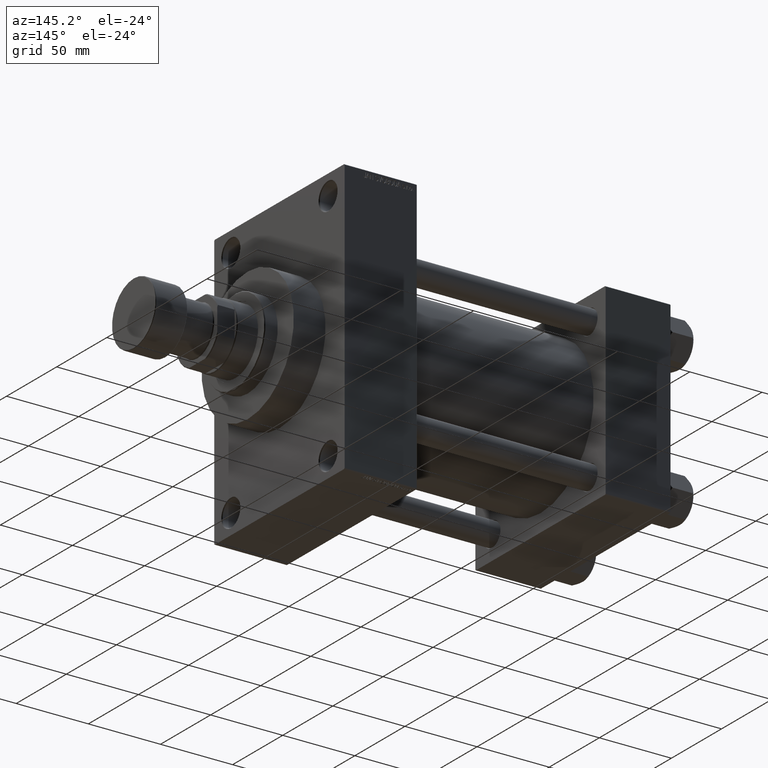
[diagram: clean part render]
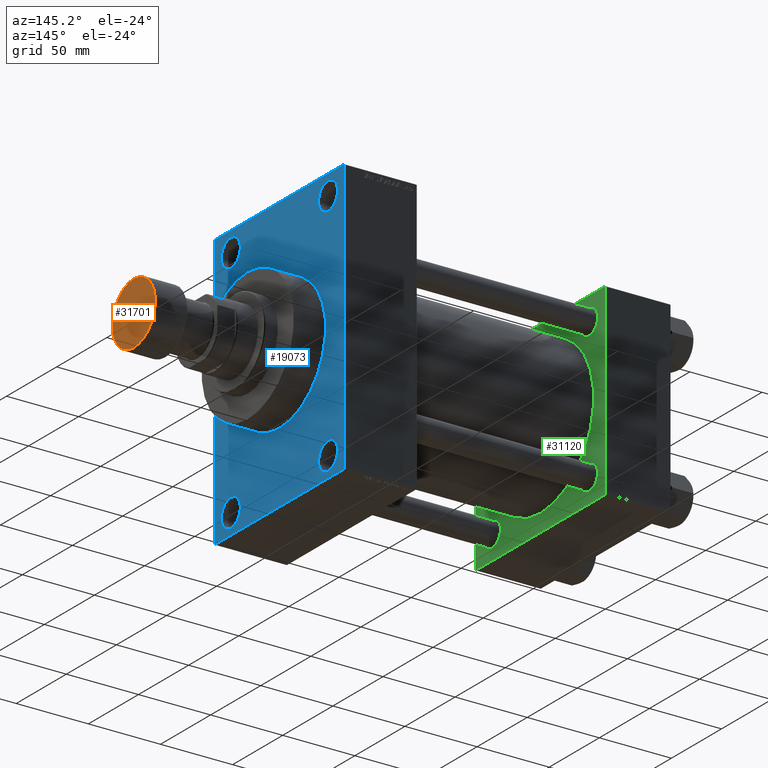
[diagram: same view with three faces highlighted in distinct colors, each labeled with its STEP entity id]
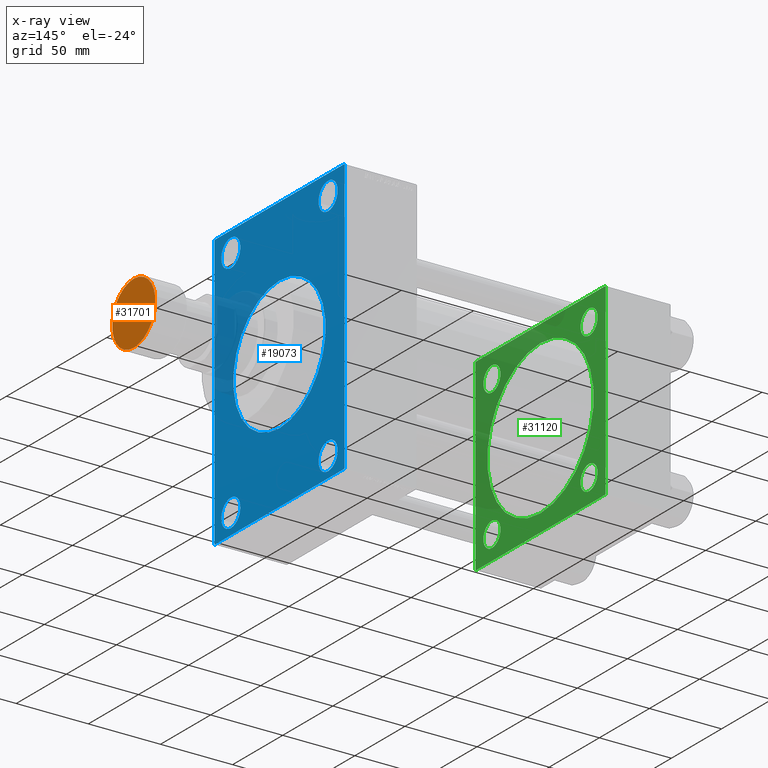
[diagram: x-ray of the same camera — body ghosted, the three highlighted faces saturated]
A machine part, auxiliary view with three faces highlighted in distinct colors.
The next image is the same camera in x-ray (body ghosted, the three faces saturated) — at least one of them is partly hidden behind the body in this view.
Their STEP definitions:

[orange] entity #31701 — the highlighted planar face has unit normal (1, 0, 0).
#1536 = EDGE_LOOP ( 'NONE', ( #26895, #14874 ) ) ;
#2057 = CIRCLE ( 'NONE', #29248, 21.50000000000000000 ) ;
#2394 = CIRCLE ( 'NONE', #42013, 21.50000000000000000 ) ;
#2482 = FACE_OUTER_BOUND ( 'NONE', #1536, .T. ) ;
#4554 = VERTEX_POINT ( 'NONE', #22696 ) ;
#6181 = AXIS2_PLACEMENT_3D ( 'NONE', #46988, #29004, #47944 ) ;
#7486 = CARTESIAN_POINT ( 'NONE',  ( 0.000000000000000000, 0.000000000000000000, 0.000000000000000000 ) ) ;
#14874 = ORIENTED_EDGE ( 'NONE', *, *, #34252, .T. ) ;
#20374 = EDGE_CURVE ( 'NONE', #4554, #40756, #2057, .T. ) ;
#21693 = PLANE ( 'NONE',  #6181 ) ;
#22696 = CARTESIAN_POINT ( 'NONE',  ( 21.50000000000000000, 0.000000000000000000, 0.000000000000000000 ) ) ;
#25519 = DIRECTION ( 'NONE',  ( 1.000000000000000000, 0.000000000000000000, 0.000000000000000000 ) ) ;
#26895 = ORIENTED_EDGE ( 'NONE', *, *, #20374, .T. ) ;
#27173 = DIRECTION ( 'NONE',  ( 0.000000000000000000, 0.000000000000000000, 1.000000000000000000 ) ) ;
#29004 = DIRECTION ( 'NONE',  ( 0.000000000000000000, 0.000000000000000000, 1.000000000000000000 ) ) ;
#29248 = AXIS2_PLACEMENT_3D ( 'NONE', #34453, #27173, #41003 ) ;
#31701 = ADVANCED_FACE ( 'NONE', ( #2482 ), #21693, .T. ) ;
#34252 = EDGE_CURVE ( 'NONE', #40756, #4554, #2394, .T. ) ;
#34453 = CARTESIAN_POINT ( 'NONE',  ( 0.000000000000000000, 0.000000000000000000, 0.000000000000000000 ) ) ;
#40756 = VERTEX_POINT ( 'NONE', #42773 ) ;
#41003 = DIRECTION ( 'NONE',  ( 1.000000000000000000, 0.000000000000000000, 0.000000000000000000 ) ) ;
#42013 = AXIS2_PLACEMENT_3D ( 'NONE', #7486, #47872, #25519 ) ;
#42773 = CARTESIAN_POINT ( 'NONE',  ( -21.50000000000000000, 2.663606788145493022E-15, 0.000000000000000000 ) ) ;
#46988 = CARTESIAN_POINT ( 'NONE',  ( 0.000000000000000000, 0.000000000000000000, 0.000000000000000000 ) ) ;
#47872 = DIRECTION ( 'NONE',  ( 0.000000000000000000, 0.000000000000000000, 1.000000000000000000 ) ) ;
#47944 = DIRECTION ( 'NONE',  ( 1.000000000000000000, 0.000000000000000000, -0.000000000000000000 ) ) ;

[blue] entity #19073 — the highlighted planar face has unit normal (-1, 0, 0).
#78 = VERTEX_POINT ( 'NONE', #45196 ) ;
#211 = EDGE_CURVE ( 'NONE', #45482, #78, #30211, .T. ) ;
#401 = ORIENTED_EDGE ( 'NONE', *, *, #41004, .F. ) ;
#1522 = VERTEX_POINT ( 'NONE', #14857 ) ;
#1616 = EDGE_CURVE ( 'NONE', #37584, #36741, #38203, .T. ) ;
#1707 = VERTEX_POINT ( 'NONE', #36467 ) ;
#1781 = EDGE_CURVE ( 'NONE', #39456, #23470, #44490, .T. ) ;
#1793 = CARTESIAN_POINT ( 'NONE',  ( 225.9999999999999716, -65.00000000000001421, -94.50000000000008527 ) ) ;
#1822 = VECTOR ( 'NONE', #20282, 1000.000000000000000 ) ;
#2109 = EDGE_CURVE ( 'NONE', #48070, #1522, #13954, .T. ) ;
#2180 = VERTEX_POINT ( 'NONE', #45382 ) ;
#2379 = CARTESIAN_POINT ( 'NONE',  ( 225.9999999999999716, 64.99999999999998579, -94.50000000000002842 ) ) ;
#2506 = CARTESIAN_POINT ( 'NONE',  ( 225.9999999999999716, -64.50000000000007105, -95.00000000000002842 ) ) ;
#2937 = EDGE_LOOP ( 'NONE', ( #48142, #32035, #28563, #19178, #33047, #35620, #14765, #27241 ) ) ;
#3361 = DIRECTION ( 'NONE',  ( -1.000000000000000000, 0.000000000000000000, -0.000000000000000000 ) ) ;
#3510 = CIRCLE ( 'NONE', #40794, 46.00000000000000000 ) ;
#3653 = EDGE_LOOP ( 'NONE', ( #7223, #43697 ) ) ;
#3802 = AXIS2_PLACEMENT_3D ( 'NONE', #17320, #32156, #7094 ) ;
#3971 = CARTESIAN_POINT ( 'NONE',  ( 225.9999999999999716, -48.50000000000000000, 81.00000000000000000 ) ) ;
#4169 = VECTOR ( 'NONE', #17690, 1000.000000000000000 ) ;
#4411 = CARTESIAN_POINT ( 'NONE',  ( 225.9999999999999716, -48.50000000000000000, 81.00000000000000000 ) ) ;
#4751 = VERTEX_POINT ( 'NONE', #18260 ) ;
#5181 = EDGE_CURVE ( 'NONE', #18463, #1707, #19411, .T. ) ;
#5685 = VECTOR ( 'NONE', #39714, 1000.000000000000114 ) ;
#6467 = EDGE_LOOP ( 'NONE', ( #18390, #401 ) ) ;
#6906 = DIRECTION ( 'NONE',  ( 0.000000000000000000, 0.000000000000000000, 1.000000000000000000 ) ) ;
#6985 = FACE_BOUND ( 'NONE', #18753, .T. ) ;
#7094 = DIRECTION ( 'NONE',  ( 0.000000000000000000, 0.000000000000000000, 1.000000000000000000 ) ) ;
#7223 = ORIENTED_EDGE ( 'NONE', *, *, #39651, .T. ) ;
#8269 = CARTESIAN_POINT ( 'NONE',  ( 225.9999999999999716, -65.00000000000001421, 94.99999999999997158 ) ) ;
#8459 = VERTEX_POINT ( 'NONE', #21015 ) ;
#9089 = DIRECTION ( 'NONE',  ( 0.000000000000000000, 0.000000000000000000, 1.000000000000000000 ) ) ;
#9199 = CARTESIAN_POINT ( 'NONE',  ( 225.9999999999999716, -65.00000000000001421, 94.50000000000000000 ) ) ;
#9862 = ORIENTED_EDGE ( 'NONE', *, *, #45773, .T. ) ;
#10467 = EDGE_CURVE ( 'NONE', #4751, #26808, #25072, .T. ) ;
#10821 = EDGE_CURVE ( 'NONE', #39456, #26808, #36418, .T. ) ;
#10856 = CIRCLE ( 'NONE', #12424, 9.499999999999980460 ) ;
#10861 = CIRCLE ( 'NONE', #33408, 9.499999999999980460 ) ;
#11013 = CARTESIAN_POINT ( 'NONE',  ( 225.9999999999999716, 0.000000000000000000, 0.000000000000000000 ) ) ;
#11123 = DIRECTION ( 'NONE',  ( 0.000000000000000000, 0.000000000000000000, 1.000000000000000000 ) ) ;
#11146 = CARTESIAN_POINT ( 'NONE',  ( 225.9999999999999716, 64.99999999999998579, -95.00000000000001421 ) ) ;
#11179 = CARTESIAN_POINT ( 'NONE',  ( 225.9999999999999716, 48.50000000000000711, -81.00000000000001421 ) ) ;
#11613 = CARTESIAN_POINT ( 'NONE',  ( 225.9999999999999716, -48.49999999999999289, -81.00000000000001421 ) ) ;
#11778 = VERTEX_POINT ( 'NONE', #34816 ) ;
#12424 = AXIS2_PLACEMENT_3D ( 'NONE', #11179, #36972, #29445 ) ;
#12952 = CARTESIAN_POINT ( 'NONE',  ( 225.9999999999999716, 64.49999999999997158, 94.99999999999997158 ) ) ;
#13206 = AXIS2_PLACEMENT_3D ( 'NONE', #11613, #3361, #22581 ) ;
#13954 = CIRCLE ( 'NONE', #44282, 9.499999999999980460 ) ;
#14310 = VERTEX_POINT ( 'NONE', #47332 ) ;
#14504 = PLANE ( 'NONE',  #23772 ) ;
#14725 = EDGE_CURVE ( 'NONE', #11778, #8459, #3510, .T. ) ;
#14746 = CARTESIAN_POINT ( 'NONE',  ( 225.9999999999999716, 0.000000000000000000, 0.000000000000000000 ) ) ;
#14765 = ORIENTED_EDGE ( 'NONE', *, *, #17224, .T. ) ;
#14857 = CARTESIAN_POINT ( 'NONE',  ( 225.9999999999999716, 48.50000000000000711, 90.49999999999998579 ) ) ;
#15086 = DIRECTION ( 'NONE',  ( 0.000000000000000000, -1.000000000000000000, 0.000000000000000000 ) ) ;
#16293 = CARTESIAN_POINT ( 'NONE',  ( 225.9999999999999716, 0.000000000000000000, 0.000000000000000000 ) ) ;
#16509 = ORIENTED_EDGE ( 'NONE', *, *, #30691, .T. ) ;
#17224 = EDGE_CURVE ( 'NONE', #32508, #14310, #18499, .T. ) ;
#17320 = CARTESIAN_POINT ( 'NONE',  ( 225.9999999999999716, 48.50000000000000711, -81.00000000000001421 ) ) ;
#17690 = DIRECTION ( 'NONE',  ( -0.000000000000000000, 0.7071067811865573427, 0.7071067811865378028 ) ) ;
#17777 = CIRCLE ( 'NONE', #3802, 9.499999999999980460 ) ;
#18077 = CARTESIAN_POINT ( 'NONE',  ( 225.9999999999999716, 64.49999999999997158, 94.99999999999997158 ) ) ;
#18260 = CARTESIAN_POINT ( 'NONE',  ( 225.9999999999999716, 64.99999999999997158, 94.49999999999997158 ) ) ;
#18390 = ORIENTED_EDGE ( 'NONE', *, *, #14725, .F. ) ;
#18417 = ORIENTED_EDGE ( 'NONE', *, *, #46189, .T. ) ;
#18463 = VERTEX_POINT ( 'NONE', #34858 ) ;
#18499 = LINE ( 'NONE', #41345, #26062 ) ;
#18753 = EDGE_LOOP ( 'NONE', ( #39783, #38366 ) ) ;
#19073 = ADVANCED_FACE ( 'NONE', ( #25730, #6985, #21343, #32293, #25244, #32772 ), #14504, .F. ) ;
#19079 = CARTESIAN_POINT ( 'NONE',  ( 225.9999999999999716, -65.00000000000001421, 94.50000000000000000 ) ) ;
#19178 = ORIENTED_EDGE ( 'NONE', *, *, #10821, .T. ) ;
#19411 = CIRCLE ( 'NONE', #13206, 9.499999999999980460 ) ;
#20069 = EDGE_CURVE ( 'NONE', #14310, #37584, #24301, .T. ) ;
#20223 = AXIS2_PLACEMENT_3D ( 'NONE', #21864, #41276, #11123 ) ;
#20282 = DIRECTION ( 'NONE',  ( 0.000000000000000000, 7.304098846218135653E-17, -1.000000000000000000 ) ) ;
#20662 = DIRECTION ( 'NONE',  ( -1.000000000000000000, 0.000000000000000000, -0.000000000000000000 ) ) ;
#20767 = LINE ( 'NONE', #2506, #5685 ) ;
#20768 = AXIS2_PLACEMENT_3D ( 'NONE', #4411, #20662, #35491 ) ;
#21015 = CARTESIAN_POINT ( 'NONE',  ( 225.9999999999999716, 5.633375276077824704E-15, -46.00000000000000000 ) ) ;
#21343 = FACE_BOUND ( 'NONE', #25597, .T. ) ;
#21568 = AXIS2_PLACEMENT_3D ( 'NONE', #16293, #27264, #42072 ) ;
#21644 = CARTESIAN_POINT ( 'NONE',  ( 225.9999999999999716, 48.50000000000000711, 71.50000000000002842 ) ) ;
#21864 = CARTESIAN_POINT ( 'NONE',  ( 225.9999999999999716, 48.50000000000000711, 81.00000000000000000 ) ) ;
#22581 = DIRECTION ( 'NONE',  ( 0.000000000000000000, 0.000000000000000000, 1.000000000000000000 ) ) ;
#23470 = VERTEX_POINT ( 'NONE', #28275 ) ;
#23772 = AXIS2_PLACEMENT_3D ( 'NONE', #14746, #36888, #36174 ) ;
#24301 = LINE ( 'NONE', #9199, #46300 ) ;
#25044 = CARTESIAN_POINT ( 'NONE',  ( 225.9999999999999716, 64.99999999999998579, -94.50000000000002842 ) ) ;
#25072 = LINE ( 'NONE', #32837, #1822 ) ;
#25244 = FACE_BOUND ( 'NONE', #6467, .T. ) ;
#25597 = EDGE_LOOP ( 'NONE', ( #16509, #9862 ) ) ;
#25730 = FACE_BOUND ( 'NONE', #3653, .T. ) ;
#25873 = DIRECTION ( 'NONE',  ( 1.000000000000000000, 0.000000000000000000, 0.000000000000000000 ) ) ;
#25950 = DIRECTION ( 'NONE',  ( -1.000000000000000000, 0.000000000000000000, -0.000000000000000000 ) ) ;
#26062 = VECTOR ( 'NONE', #15086, 1000.000000000000000 ) ;
#26371 = VECTOR ( 'NONE', #30662, 1000.000000000000000 ) ;
#26657 = ORIENTED_EDGE ( 'NONE', *, *, #2109, .T. ) ;
#26808 = VERTEX_POINT ( 'NONE', #25044 ) ;
#26990 = CIRCLE ( 'NONE', #20768, 9.499999999999980460 ) ;
#27241 = ORIENTED_EDGE ( 'NONE', *, *, #20069, .T. ) ;
#27264 = DIRECTION ( 'NONE',  ( 1.000000000000000000, 0.000000000000000000, 0.000000000000000000 ) ) ;
#27806 = DIRECTION ( 'NONE',  ( 0.000000000000000000, -0.7071067811865474617, 0.7071067811865474617 ) ) ;
#28275 = CARTESIAN_POINT ( 'NONE',  ( 225.9999999999999716, -64.50000000000007105, -95.00000000000002842 ) ) ;
#28563 = ORIENTED_EDGE ( 'NONE', *, *, #1781, .F. ) ;
#29445 = DIRECTION ( 'NONE',  ( 0.000000000000000000, 0.000000000000000000, 1.000000000000000000 ) ) ;
#29598 = CARTESIAN_POINT ( 'NONE',  ( 225.9999999999999716, 48.50000000000000711, 81.00000000000000000 ) ) ;
#30211 = CIRCLE ( 'NONE', #45742, 9.499999999999980460 ) ;
#30277 = CARTESIAN_POINT ( 'NONE',  ( 225.9999999999999716, -48.49999999999999289, -81.00000000000001421 ) ) ;
#30662 = DIRECTION ( 'NONE',  ( 0.000000000000000000, 0.000000000000000000, -1.000000000000000000 ) ) ;
#30675 = EDGE_CURVE ( 'NONE', #4751, #32508, #46280, .T. ) ;
#30691 = EDGE_CURVE ( 'NONE', #2180, #47355, #17777, .T. ) ;
#32035 = ORIENTED_EDGE ( 'NONE', *, *, #36923, .T. ) ;
#32064 = DIRECTION ( 'NONE',  ( -0.000000000000000000, -0.7071067811865573427, -0.7071067811865376918 ) ) ;
#32156 = DIRECTION ( 'NONE',  ( -1.000000000000000000, 0.000000000000000000, -0.000000000000000000 ) ) ;
#32252 = EDGE_CURVE ( 'NONE', #1707, #18463, #10861, .T. ) ;
#32293 = FACE_BOUND ( 'NONE', #43396, .T. ) ;
#32508 = VERTEX_POINT ( 'NONE', #18077 ) ;
#32772 = FACE_OUTER_BOUND ( 'NONE', #2937, .T. ) ;
#32837 = CARTESIAN_POINT ( 'NONE',  ( 225.9999999999999716, 64.99999999999997158, 94.99999999999997158 ) ) ;
#33047 = ORIENTED_EDGE ( 'NONE', *, *, #10467, .F. ) ;
#33408 = AXIS2_PLACEMENT_3D ( 'NONE', #30277, #45352, #9089 ) ;
#34162 = CIRCLE ( 'NONE', #20223, 9.499999999999980460 ) ;
#34816 = CARTESIAN_POINT ( 'NONE',  ( 225.9999999999999716, 0.000000000000000000, 46.00000000000000000 ) ) ;
#34858 = CARTESIAN_POINT ( 'NONE',  ( 225.9999999999999716, -48.49999999999999289, -71.50000000000004263 ) ) ;
#35491 = DIRECTION ( 'NONE',  ( 0.000000000000000000, 0.000000000000000000, 1.000000000000000000 ) ) ;
#35565 = CIRCLE ( 'NONE', #21568, 46.00000000000000000 ) ;
#35620 = ORIENTED_EDGE ( 'NONE', *, *, #30675, .T. ) ;
#36174 = DIRECTION ( 'NONE',  ( -0.000000000000000000, 0.000000000000000000, 1.000000000000000000 ) ) ;
#36418 = LINE ( 'NONE', #2379, #4169 ) ;
#36467 = CARTESIAN_POINT ( 'NONE',  ( 225.9999999999999716, -48.49999999999999289, -90.50000000000000000 ) ) ;
#36741 = VERTEX_POINT ( 'NONE', #1793 ) ;
#36888 = DIRECTION ( 'NONE',  ( -1.000000000000000000, 0.000000000000000000, -0.000000000000000000 ) ) ;
#36923 = EDGE_CURVE ( 'NONE', #36741, #23470, #20767, .T. ) ;
#36972 = DIRECTION ( 'NONE',  ( -1.000000000000000000, 0.000000000000000000, -0.000000000000000000 ) ) ;
#37038 = DIRECTION ( 'NONE',  ( 0.000000000000000000, 0.000000000000000000, -1.000000000000000000 ) ) ;
#37224 = VECTOR ( 'NONE', #41299, 1000.000000000000000 ) ;
#37584 = VERTEX_POINT ( 'NONE', #19079 ) ;
#38203 = LINE ( 'NONE', #8269, #26371 ) ;
#38366 = ORIENTED_EDGE ( 'NONE', *, *, #5181, .T. ) ;
#38792 = VECTOR ( 'NONE', #27806, 1000.000000000000114 ) ;
#39456 = VERTEX_POINT ( 'NONE', #43134 ) ;
#39651 = EDGE_CURVE ( 'NONE', #78, #45482, #26990, .T. ) ;
#39714 = DIRECTION ( 'NONE',  ( 0.000000000000000000, 0.7071067811865474617, -0.7071067811865474617 ) ) ;
#39783 = ORIENTED_EDGE ( 'NONE', *, *, #32252, .T. ) ;
#40581 = CARTESIAN_POINT ( 'NONE',  ( 225.9999999999999716, 48.50000000000000711, -71.50000000000004263 ) ) ;
#40758 = DIRECTION ( 'NONE',  ( 0.000000000000000000, 0.000000000000000000, 1.000000000000000000 ) ) ;
#40794 = AXIS2_PLACEMENT_3D ( 'NONE', #11013, #25873, #37038 ) ;
#41004 = EDGE_CURVE ( 'NONE', #8459, #11778, #35565, .T. ) ;
#41276 = DIRECTION ( 'NONE',  ( -1.000000000000000000, 0.000000000000000000, -0.000000000000000000 ) ) ;
#41299 = DIRECTION ( 'NONE',  ( 0.000000000000000000, -1.000000000000000000, -1.067522139062650425E-16 ) ) ;
#41345 = CARTESIAN_POINT ( 'NONE',  ( 225.9999999999999716, 64.99999999999997158, 94.99999999999997158 ) ) ;
#41386 = CARTESIAN_POINT ( 'NONE',  ( 225.9999999999999716, -48.50000000000000000, 90.49999999999998579 ) ) ;
#42072 = DIRECTION ( 'NONE',  ( 0.000000000000000000, 0.000000000000000000, -1.000000000000000000 ) ) ;
#43134 = CARTESIAN_POINT ( 'NONE',  ( 225.9999999999999716, 64.49999999999998579, -95.00000000000001421 ) ) ;
#43396 = EDGE_LOOP ( 'NONE', ( #26657, #18417 ) ) ;
#43697 = ORIENTED_EDGE ( 'NONE', *, *, #211, .T. ) ;
#44282 = AXIS2_PLACEMENT_3D ( 'NONE', #29598, #25950, #40758 ) ;
#44367 = DIRECTION ( 'NONE',  ( -1.000000000000000000, 0.000000000000000000, -0.000000000000000000 ) ) ;
#44490 = LINE ( 'NONE', #11146, #37224 ) ;
#45196 = CARTESIAN_POINT ( 'NONE',  ( 225.9999999999999716, -48.50000000000000000, 71.50000000000002842 ) ) ;
#45352 = DIRECTION ( 'NONE',  ( -1.000000000000000000, 0.000000000000000000, -0.000000000000000000 ) ) ;
#45382 = CARTESIAN_POINT ( 'NONE',  ( 225.9999999999999716, 48.50000000000000711, -90.50000000000000000 ) ) ;
#45482 = VERTEX_POINT ( 'NONE', #41386 ) ;
#45742 = AXIS2_PLACEMENT_3D ( 'NONE', #3971, #44367, #6906 ) ;
#45773 = EDGE_CURVE ( 'NONE', #47355, #2180, #10856, .T. ) ;
#46189 = EDGE_CURVE ( 'NONE', #1522, #48070, #34162, .T. ) ;
#46280 = LINE ( 'NONE', #12952, #38792 ) ;
#46300 = VECTOR ( 'NONE', #32064, 1000.000000000000114 ) ;
#47332 = CARTESIAN_POINT ( 'NONE',  ( 225.9999999999999716, -64.50000000000002842, 94.99999999999997158 ) ) ;
#47355 = VERTEX_POINT ( 'NONE', #40581 ) ;
#48070 = VERTEX_POINT ( 'NONE', #21644 ) ;
#48142 = ORIENTED_EDGE ( 'NONE', *, *, #1616, .T. ) ;

[green] entity #31120 — the highlighted planar face has unit normal (-1, 0, 0).
#94 = CARTESIAN_POINT ( 'NONE',  ( 45.00000000000000000, -65.00000000000000000, 64.50000000000000000 ) ) ;
#540 = LINE ( 'NONE', #8566, #46240 ) ;
#724 = AXIS2_PLACEMENT_3D ( 'NONE', #40586, #21155, #47648 ) ;
#1380 = VERTEX_POINT ( 'NONE', #43585 ) ;
#1420 = DIRECTION ( 'NONE',  ( 0.000000000000000000, 0.000000000000000000, 1.000000000000000000 ) ) ;
#1538 = AXIS2_PLACEMENT_3D ( 'NONE', #6550, #2886, #43996 ) ;
#2036 = CARTESIAN_POINT ( 'NONE',  ( 45.00000000000000000, 65.00000000000000000, 64.49999999999998579 ) ) ;
#2514 = DIRECTION ( 'NONE',  ( 0.000000000000000000, -0.7071067811865474617, 0.7071067811865474617 ) ) ;
#2693 = LINE ( 'NONE', #10469, #22138 ) ;
#2705 = ORIENTED_EDGE ( 'NONE', *, *, #38689, .F. ) ;
#2886 = DIRECTION ( 'NONE',  ( -1.000000000000000000, 0.000000000000000000, -0.000000000000000000 ) ) ;
#3133 = CARTESIAN_POINT ( 'NONE',  ( 45.00000000000000000, 48.45000000000000995, -56.95000000000002416 ) ) ;
#3747 = DIRECTION ( 'NONE',  ( 0.000000000000000000, -1.000000000000000000, -1.067522139062650425E-16 ) ) ;
#4066 = EDGE_CURVE ( 'NONE', #24903, #9993, #44977, .T. ) ;
#4641 = VERTEX_POINT ( 'NONE', #30704 ) ;
#4674 = CARTESIAN_POINT ( 'NONE',  ( 45.00000000000000000, -48.44999999999999574, 48.45000000000003126 ) ) ;
#4992 = VERTEX_POINT ( 'NONE', #43753 ) ;
#5034 = CARTESIAN_POINT ( 'NONE',  ( 45.00000000000000000, 64.49999999999997158, 65.00000000000001421 ) ) ;
#5188 = ORIENTED_EDGE ( 'NONE', *, *, #34710, .T. ) ;
#5290 = CARTESIAN_POINT ( 'NONE',  ( 45.00000000000000000, 48.45000000000000995, 39.95000000000000284 ) ) ;
#5649 = DIRECTION ( 'NONE',  ( 0.000000000000000000, 0.7071067811865279218, -0.7071067811865671127 ) ) ;
#6550 = CARTESIAN_POINT ( 'NONE',  ( 45.00000000000000000, 0.000000000000000000, 0.000000000000000000 ) ) ;
#6894 = CARTESIAN_POINT ( 'NONE',  ( 45.00000000000000000, -48.44999999999999574, -56.95000000000003837 ) ) ;
#6924 = ORIENTED_EDGE ( 'NONE', *, *, #32521, .T. ) ;
#6934 = EDGE_CURVE ( 'NONE', #14689, #4992, #25720, .T. ) ;
#7028 = VERTEX_POINT ( 'NONE', #23641 ) ;
#7516 = CARTESIAN_POINT ( 'NONE',  ( 45.00000000000000000, 48.45000000000000995, 48.45000000000001705 ) ) ;
#7842 = CIRCLE ( 'NONE', #27290, 8.500000000000007105 ) ;
#7877 = ORIENTED_EDGE ( 'NONE', *, *, #24516, .T. ) ;
#8566 = CARTESIAN_POINT ( 'NONE',  ( 45.00000000000000000, 65.00000000000000000, 65.00000000000001421 ) ) ;
#9077 = EDGE_LOOP ( 'NONE', ( #21512, #6924 ) ) ;
#9241 = VECTOR ( 'NONE', #3747, 1000.000000000000000 ) ;
#9541 = CARTESIAN_POINT ( 'NONE',  ( 44.99999999999998579, -2.602085213965210642E-15, 53.00000000000000711 ) ) ;
#9993 = VERTEX_POINT ( 'NONE', #18398 ) ;
#10013 = DIRECTION ( 'NONE',  ( -1.000000000000000000, 0.000000000000000000, -0.000000000000000000 ) ) ;
#10345 = EDGE_LOOP ( 'NONE', ( #46814, #25826 ) ) ;
#10437 = CARTESIAN_POINT ( 'NONE',  ( 45.00000000000000000, 48.45000000000000995, 48.45000000000001705 ) ) ;
#10458 = CARTESIAN_POINT ( 'NONE',  ( 45.00000000000000000, 65.00000000000000000, -64.99999999999998579 ) ) ;
#10469 = CARTESIAN_POINT ( 'NONE',  ( 45.00000000000000000, -64.49999999999994316, -65.00000000000000000 ) ) ;
#10760 = DIRECTION ( 'NONE',  ( -1.000000000000000000, 0.000000000000000000, -0.000000000000000000 ) ) ;
#10853 = VERTEX_POINT ( 'NONE', #46886 ) ;
#11134 = DIRECTION ( 'NONE',  ( 0.000000000000000000, 0.000000000000000000, 1.000000000000000000 ) ) ;
#12006 = EDGE_CURVE ( 'NONE', #41346, #32570, #36848, .T. ) ;
#12427 = CIRCLE ( 'NONE', #39602, 8.500000000000007105 ) ;
#12604 = DIRECTION ( 'NONE',  ( -1.000000000000000000, 0.000000000000000000, -0.000000000000000000 ) ) ;
#13060 = VECTOR ( 'NONE', #25320, 1000.000000000000000 ) ;
#13836 = FACE_OUTER_BOUND ( 'NONE', #21353, .T. ) ;
#13916 = CIRCLE ( 'NONE', #26364, 8.500000000000007105 ) ;
#13952 = DIRECTION ( 'NONE',  ( -0.000000000000000000, -0.7071067811865672237, -0.7071067811865279218 ) ) ;
#14689 = VERTEX_POINT ( 'NONE', #6894 ) ;
#14820 = EDGE_CURVE ( 'NONE', #32402, #9993, #540, .T. ) ;
#16012 = CARTESIAN_POINT ( 'NONE',  ( 45.00000000000000000, 64.49999999999997158, -64.99999999999998579 ) ) ;
#16442 = EDGE_CURVE ( 'NONE', #4641, #7028, #2693, .T. ) ;
#16678 = CARTESIAN_POINT ( 'NONE',  ( 45.00000000000000000, -65.00000000000000000, 65.00000000000000000 ) ) ;
#17623 = EDGE_LOOP ( 'NONE', ( #30859, #30905 ) ) ;
#18245 = VERTEX_POINT ( 'NONE', #46338 ) ;
#18398 = CARTESIAN_POINT ( 'NONE',  ( 45.00000000000000000, 65.00000000000000000, -64.49999999999995737 ) ) ;
#18526 = ORIENTED_EDGE ( 'NONE', *, *, #4066, .T. ) ;
#18710 = DIRECTION ( 'NONE',  ( -0.000000000000000000, 0.7071067811865474617, 0.7071067811865474617 ) ) ;
#18729 = ORIENTED_EDGE ( 'NONE', *, *, #16442, .T. ) ;
#18759 = ORIENTED_EDGE ( 'NONE', *, *, #18865, .T. ) ;
#18865 = EDGE_CURVE ( 'NONE', #32570, #41346, #34637, .T. ) ;
#20070 = DIRECTION ( 'NONE',  ( 0.000000000000000000, 0.000000000000000000, 1.000000000000000000 ) ) ;
#20226 = VECTOR ( 'NONE', #2514, 1000.000000000000114 ) ;
#20293 = AXIS2_PLACEMENT_3D ( 'NONE', #43336, #10013, #46754 ) ;
#20302 = CARTESIAN_POINT ( 'NONE',  ( 45.00000000000000000, -48.44999999999999574, -48.45000000000003126 ) ) ;
#20340 = LINE ( 'NONE', #16678, #32510 ) ;
#21018 = LINE ( 'NONE', #35853, #20226 ) ;
#21152 = FACE_BOUND ( 'NONE', #10345, .T. ) ;
#21155 = DIRECTION ( 'NONE',  ( 1.000000000000000000, -0.000000000000000000, 0.000000000000000000 ) ) ;
#21342 = AXIS2_PLACEMENT_3D ( 'NONE', #7516, #44272, #28729 ) ;
#21353 = EDGE_LOOP ( 'NONE', ( #2705, #18526, #22220, #23672, #29476, #34313, #7877, #18729 ) ) ;
#21512 = ORIENTED_EDGE ( 'NONE', *, *, #34190, .T. ) ;
#21713 = CIRCLE ( 'NONE', #724, 53.00000000000000711 ) ;
#21875 = CARTESIAN_POINT ( 'NONE',  ( 45.00000000000000000, 48.45000000000000995, -48.45000000000001705 ) ) ;
#22138 = VECTOR ( 'NONE', #5649, 1000.000000000000000 ) ;
#22220 = ORIENTED_EDGE ( 'NONE', *, *, #14820, .F. ) ;
#23276 = CARTESIAN_POINT ( 'NONE',  ( 45.00000000000000000, -64.49999999999997158, 65.00000000000000000 ) ) ;
#23641 = CARTESIAN_POINT ( 'NONE',  ( 45.00000000000000000, -64.49999999999994316, -65.00000000000000000 ) ) ;
#23672 = ORIENTED_EDGE ( 'NONE', *, *, #32421, .T. ) ;
#24208 = EDGE_LOOP ( 'NONE', ( #44532, #18759 ) ) ;
#24516 = EDGE_CURVE ( 'NONE', #24637, #4641, #20340, .T. ) ;
#24637 = VERTEX_POINT ( 'NONE', #94 ) ;
#24854 = DIRECTION ( 'NONE',  ( 0.000000000000000000, 0.000000000000000000, 1.000000000000000000 ) ) ;
#24903 = VERTEX_POINT ( 'NONE', #16012 ) ;
#25055 = FACE_BOUND ( 'NONE', #34005, .T. ) ;
#25320 = DIRECTION ( 'NONE',  ( 0.000000000000000000, -1.000000000000000000, -1.067522139062650425E-16 ) ) ;
#25629 = DIRECTION ( 'NONE',  ( 0.000000000000000000, 0.000000000000000000, 1.000000000000000000 ) ) ;
#25720 = CIRCLE ( 'NONE', #32673, 8.500000000000007105 ) ;
#25779 = VERTEX_POINT ( 'NONE', #23276 ) ;
#25826 = ORIENTED_EDGE ( 'NONE', *, *, #33306, .F. ) ;
#26218 = EDGE_CURVE ( 'NONE', #37523, #25779, #29552, .T. ) ;
#26364 = AXIS2_PLACEMENT_3D ( 'NONE', #4674, #45534, #24854 ) ;
#27126 = DIRECTION ( 'NONE',  ( 0.000000000000000000, 0.000000000000000000, 1.000000000000000000 ) ) ;
#27290 = AXIS2_PLACEMENT_3D ( 'NONE', #21875, #36926, #11134 ) ;
#27532 = EDGE_CURVE ( 'NONE', #34762, #36590, #21713, .T. ) ;
#27594 = VERTEX_POINT ( 'NONE', #3133 ) ;
#28729 = DIRECTION ( 'NONE',  ( 0.000000000000000000, 0.000000000000000000, 1.000000000000000000 ) ) ;
#28806 = VECTOR ( 'NONE', #18710, 1000.000000000000114 ) ;
#29169 = FACE_BOUND ( 'NONE', #24208, .T. ) ;
#29264 = CARTESIAN_POINT ( 'NONE',  ( 45.00000000000000000, 48.45000000000000995, -48.45000000000001705 ) ) ;
#29476 = ORIENTED_EDGE ( 'NONE', *, *, #26218, .T. ) ;
#29552 = LINE ( 'NONE', #44391, #9241 ) ;
#29917 = EDGE_CURVE ( 'NONE', #10853, #1380, #13916, .T. ) ;
#30387 = CARTESIAN_POINT ( 'NONE',  ( 45.00000000000000000, 65.00000000000000000, -64.49999999999995737 ) ) ;
#30704 = CARTESIAN_POINT ( 'NONE',  ( 45.00000000000000000, -65.00000000000000000, -64.49999999999991473 ) ) ;
#30859 = ORIENTED_EDGE ( 'NONE', *, *, #6934, .T. ) ;
#30905 = ORIENTED_EDGE ( 'NONE', *, *, #32216, .T. ) ;
#30954 = DIRECTION ( 'NONE',  ( 0.000000000000000000, 0.000000000000000000, -1.000000000000000000 ) ) ;
#31120 = ADVANCED_FACE ( 'NONE', ( #47645, #39622, #25055, #29169, #21152, #13836 ), #39860, .F. ) ;
#31492 = CARTESIAN_POINT ( 'NONE',  ( 44.99999999999998579, -2.602085213965210642E-15, 0.000000000000000000 ) ) ;
#31517 = DIRECTION ( 'NONE',  ( 0.000000000000000000, 0.000000000000000000, -1.000000000000000000 ) ) ;
#31884 = CIRCLE ( 'NONE', #35018, 53.00000000000000711 ) ;
#32216 = EDGE_CURVE ( 'NONE', #4992, #14689, #41936, .T. ) ;
#32359 = ORIENTED_EDGE ( 'NONE', *, *, #29917, .T. ) ;
#32402 = VERTEX_POINT ( 'NONE', #2036 ) ;
#32421 = EDGE_CURVE ( 'NONE', #32402, #37523, #21018, .T. ) ;
#32510 = VECTOR ( 'NONE', #31517, 1000.000000000000000 ) ;
#32521 = EDGE_CURVE ( 'NONE', #18245, #27594, #12427, .T. ) ;
#32570 = VERTEX_POINT ( 'NONE', #45528 ) ;
#32673 = AXIS2_PLACEMENT_3D ( 'NONE', #34744, #12604, #1420 ) ;
#32925 = LINE ( 'NONE', #47275, #42745 ) ;
#33306 = EDGE_CURVE ( 'NONE', #36590, #34762, #31884, .T. ) ;
#34005 = EDGE_LOOP ( 'NONE', ( #32359, #5188 ) ) ;
#34190 = EDGE_CURVE ( 'NONE', #27594, #18245, #7842, .T. ) ;
#34313 = ORIENTED_EDGE ( 'NONE', *, *, #47120, .T. ) ;
#34637 = CIRCLE ( 'NONE', #39275, 8.500000000000007105 ) ;
#34710 = EDGE_CURVE ( 'NONE', #1380, #10853, #41236, .T. ) ;
#34744 = CARTESIAN_POINT ( 'NONE',  ( 45.00000000000000000, -48.44999999999999574, -48.45000000000003126 ) ) ;
#34762 = VERTEX_POINT ( 'NONE', #9541 ) ;
#34904 = DIRECTION ( 'NONE',  ( 1.000000000000000000, -0.000000000000000000, 0.000000000000000000 ) ) ;
#35018 = AXIS2_PLACEMENT_3D ( 'NONE', #31492, #34904, #20070 ) ;
#35853 = CARTESIAN_POINT ( 'NONE',  ( 45.00000000000000000, 64.49999999999997158, 65.00000000000001421 ) ) ;
#36590 = VERTEX_POINT ( 'NONE', #39297 ) ;
#36848 = CIRCLE ( 'NONE', #21342, 8.500000000000007105 ) ;
#36926 = DIRECTION ( 'NONE',  ( -1.000000000000000000, 0.000000000000000000, -0.000000000000000000 ) ) ;
#37523 = VERTEX_POINT ( 'NONE', #5034 ) ;
#38689 = EDGE_CURVE ( 'NONE', #24903, #7028, #47678, .T. ) ;
#39275 = AXIS2_PLACEMENT_3D ( 'NONE', #10437, #40827, #40113 ) ;
#39297 = CARTESIAN_POINT ( 'NONE',  ( 44.99999999999998579, 3.888542821515762466E-15, -53.00000000000000711 ) ) ;
#39602 = AXIS2_PLACEMENT_3D ( 'NONE', #29264, #10760, #25629 ) ;
#39622 = FACE_BOUND ( 'NONE', #9077, .T. ) ;
#39860 = PLANE ( 'NONE',  #1538 ) ;
#40113 = DIRECTION ( 'NONE',  ( 0.000000000000000000, 0.000000000000000000, 1.000000000000000000 ) ) ;
#40586 = CARTESIAN_POINT ( 'NONE',  ( 44.99999999999998579, -2.602085213965210642E-15, 0.000000000000000000 ) ) ;
#40827 = DIRECTION ( 'NONE',  ( -1.000000000000000000, 0.000000000000000000, -0.000000000000000000 ) ) ;
#41236 = CIRCLE ( 'NONE', #20293, 8.500000000000007105 ) ;
#41346 = VERTEX_POINT ( 'NONE', #5290 ) ;
#41936 = CIRCLE ( 'NONE', #42712, 8.500000000000007105 ) ;
#42712 = AXIS2_PLACEMENT_3D ( 'NONE', #20302, #45847, #27126 ) ;
#42745 = VECTOR ( 'NONE', #13952, 1000.000000000000000 ) ;
#43336 = CARTESIAN_POINT ( 'NONE',  ( 45.00000000000000000, -48.44999999999999574, 48.45000000000003126 ) ) ;
#43585 = CARTESIAN_POINT ( 'NONE',  ( 45.00000000000000000, -48.44999999999999574, 56.95000000000003837 ) ) ;
#43753 = CARTESIAN_POINT ( 'NONE',  ( 45.00000000000000000, -48.44999999999999574, -39.95000000000001705 ) ) ;
#43996 = DIRECTION ( 'NONE',  ( -0.000000000000000000, 0.000000000000000000, 1.000000000000000000 ) ) ;
#44272 = DIRECTION ( 'NONE',  ( -1.000000000000000000, 0.000000000000000000, -0.000000000000000000 ) ) ;
#44391 = CARTESIAN_POINT ( 'NONE',  ( 45.00000000000000000, 65.00000000000000000, 65.00000000000001421 ) ) ;
#44532 = ORIENTED_EDGE ( 'NONE', *, *, #12006, .T. ) ;
#44977 = LINE ( 'NONE', #30387, #28806 ) ;
#45528 = CARTESIAN_POINT ( 'NONE',  ( 45.00000000000000000, 48.45000000000000995, 56.95000000000002416 ) ) ;
#45534 = DIRECTION ( 'NONE',  ( -1.000000000000000000, 0.000000000000000000, -0.000000000000000000 ) ) ;
#45847 = DIRECTION ( 'NONE',  ( -1.000000000000000000, 0.000000000000000000, -0.000000000000000000 ) ) ;
#46240 = VECTOR ( 'NONE', #30954, 1000.000000000000000 ) ;
#46338 = CARTESIAN_POINT ( 'NONE',  ( 45.00000000000000000, 48.45000000000000995, -39.95000000000000284 ) ) ;
#46754 = DIRECTION ( 'NONE',  ( 0.000000000000000000, 0.000000000000000000, 1.000000000000000000 ) ) ;
#46814 = ORIENTED_EDGE ( 'NONE', *, *, #27532, .F. ) ;
#46886 = CARTESIAN_POINT ( 'NONE',  ( 45.00000000000000000, -48.44999999999999574, 39.95000000000001705 ) ) ;
#47120 = EDGE_CURVE ( 'NONE', #25779, #24637, #32925, .T. ) ;
#47275 = CARTESIAN_POINT ( 'NONE',  ( 45.00000000000000000, -65.00000000000000000, 64.50000000000000000 ) ) ;
#47645 = FACE_BOUND ( 'NONE', #17623, .T. ) ;
#47648 = DIRECTION ( 'NONE',  ( 0.000000000000000000, 0.000000000000000000, 1.000000000000000000 ) ) ;
#47678 = LINE ( 'NONE', #10458, #13060 ) ;